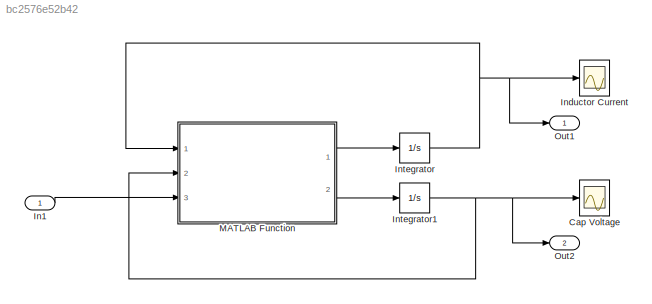
MODEL slx_bc2576e52b42
KIND model
CONFIG AbsTol = auto
CONFIG EnableMultiTasking = off
CONFIG FixedStep = 0.005
CONFIG MaxStep = auto
CONFIG MinStep = auto
CONFIG RelTol = 1e-3
CONFIG SampleTimeConstraint = Unconstrained
CONFIG Solver = ode4
CONFIG SolverName = ode4
CONFIG StartTime = 0.0
CONFIG StopTime = Inf
BLOCK [Scope] Cap Voltage
  NumInputPorts = 1
  Ports = [1]
  ScopeSpecificationString = Simulink.scopes.TimeScopeBlockCfg('CurrentConfiguration', extmgr.ConfigurationSet(extmgr.Configuration('Core','General UI',true),extmgr.Configuration('Core','Source UI',true),extmgr.Configuration('Sources','WiredSimulink',true,'DataLoggingVariableName','ScopeData3'),extmgr.Configuration('Visuals','Time Domain',true,'SerializedDisplays',{struct('MinYLimReal','5.1455','MaxYLimReal','5.42828','YLabel...<+1712ch>
BLOCK [Inport] In1
  IconDisplay = Port number
BLOCK [Scope] Inductor Current
  NumInputPorts = 1
  Ports = [1]
  ScopeSpecificationString = Simulink.scopes.TimeScopeBlockCfg('CurrentConfiguration', extmgr.ConfigurationSet(extmgr.Configuration('Core','General UI',true),extmgr.Configuration('Core','Source UI',true),extmgr.Configuration('Sources','WiredSimulink',true,'DataLoggingVariableName','ScopeData2'),extmgr.Configuration('Visuals','Time Domain',true,'SerializedDisplays',{struct('MinYLimReal','0.58007','MaxYLimReal','1.77941','YLabe...<+1743ch>
BLOCK [Integrator] Integrator
  InitialCondition = 0.7
  Ports = [1, 1]
BLOCK [Integrator] Integrator1
  InitialCondition = 5.4
  Ports = [1, 1]
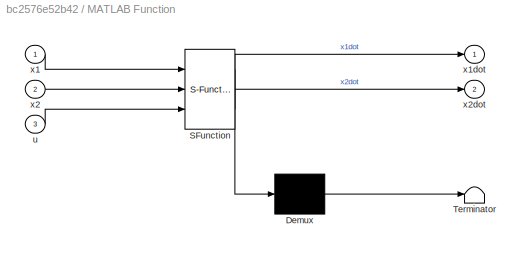
BLOCK [SubSystem] MATLAB Function
  ErrorFcn = Stateflow.Translate.translate
  PermitHierarchicalResolution = ExplicitOnly
  Ports = [3, 2]
  RequestExecContextInheritance = off
  SFBlockType = MATLAB Function
  TreatAsAtomicUnit = on
  Variant = off
BLOCK [Demux] MATLAB Function/ Demux 
  Outputs = 1
  Ports = [1, 1]
BLOCK [S-Function] MATLAB Function/ SFunction 
  EnableBusSupport = on
  FunctionName = sf_sfun
  PortCounts = [3 3]
  Ports = [3, 3]
  SFcnIsStateOwnerBlock = off
  SFunctionDeploymentMode = off
  Tag = Stateflow S-Function DC 2
BLOCK [Terminator] MATLAB Function/ Terminator 
BLOCK [Inport] MATLAB Function/u
  IconDisplay = Port number
  Port = 3
BLOCK [Inport] MATLAB Function/x1
  IconDisplay = Port number
BLOCK [Outport] MATLAB Function/x1dot
  IconDisplay = Port number
BLOCK [Inport] MATLAB Function/x2
  IconDisplay = Port number
  Port = 2
BLOCK [Outport] MATLAB Function/x2dot
  IconDisplay = Port number
  Port = 2
BLOCK [Outport] Out1
  IconDisplay = Port number
BLOCK [Outport] Out2
  IconDisplay = Port number
  Port = 2
LINE In1:1 -> MATLAB Function:3
NET Integrator1:1 -> Cap Voltage:1, MATLAB Function:2, Out2:1
NET Integrator:1 -> Inductor Current:1, MATLAB Function:1, Out1:1
LINE MATLAB Function:1 -> Integrator:1
LINE MATLAB Function:2 -> Integrator1:1
note: NET lines group one-source signal fan-out (src -> all destinations, sorted); 1:1 wires keep LINE
CHART MATLAB Function states=1 transitions=1
  STATE_LABEL 'eML_blk_kernel()'
  STATE_LABEL 'SCRIPT:\nfunction [x1dot,x2dot] = Boost_DC_converter(x1,x2,u)\n\n  x = [x1;x2];\n  r0=1.0;\n  vs = 1.0 ;\n  rl = 0.05 ;\n  rc = rl / 10 ;\n  xl = 3.0 ;\n  xc = 70.0 ;\n\n  if(u==1)\n    A = [ -rl / xl  0 ;  0  (-1 / xc) * (1 / (r0 + rc)) ] ;\n  else\n    A = [ (-1 / xl) * (rl + ((r0 * rc) / (r0 + rc)))  ((-1 / xl) * (r0 / (r0 + rc))) / 5 ;\n          5 * (r0 / (r0 + rc)) * (1 / xc)  (-1 / xc) * (1 / (r0 + rc)) ]...<+90ch>'
